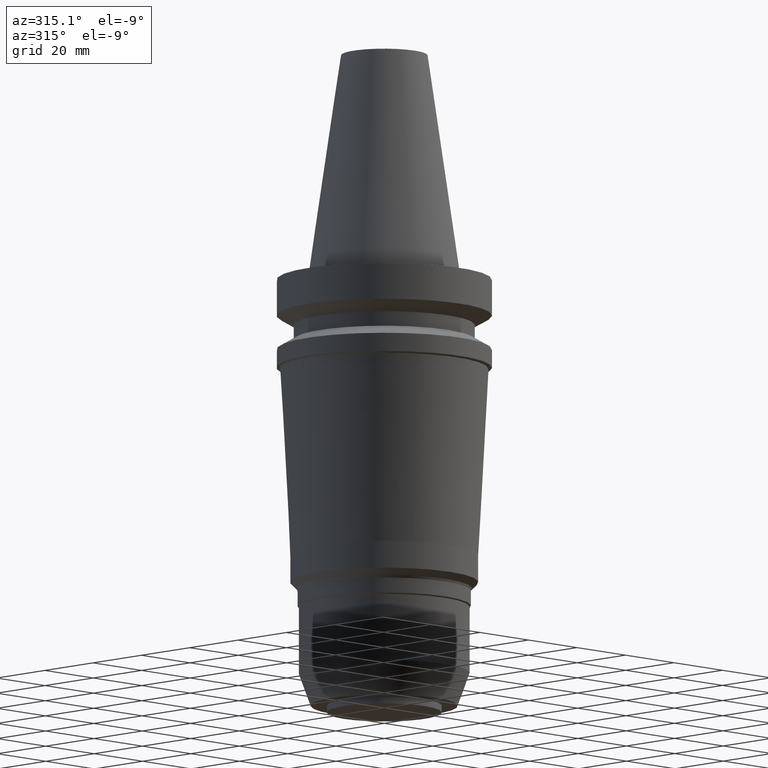
[diagram: clean part render]
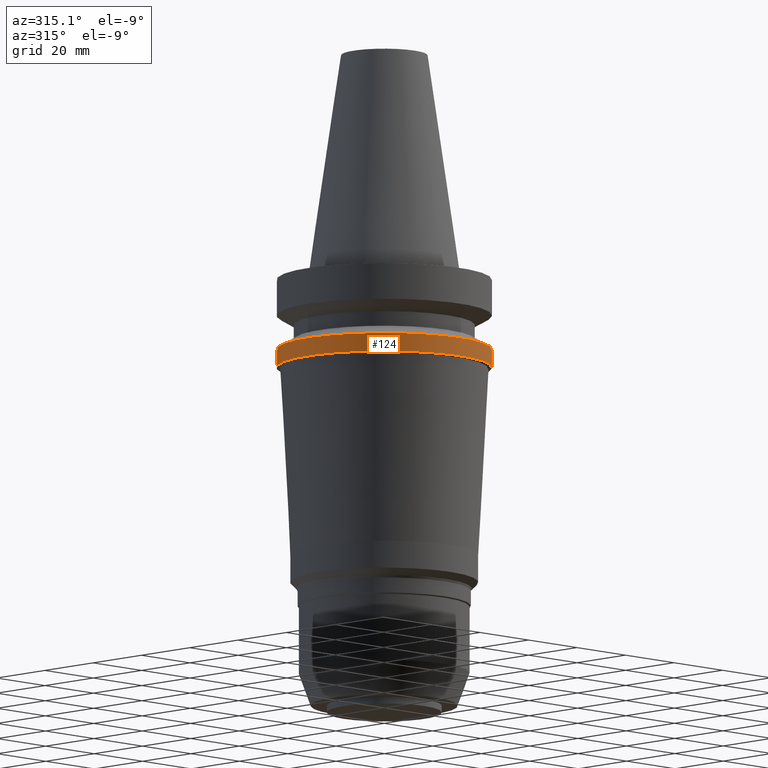
[diagram: same view with one face highlighted and labeled with its STEP entity id]
A machine part, auxiliary view. The second image highlights one B-rep face of the part: STEP entity #124.
In plain terms, the highlighted cylindrical surface (bore or boss wall) has radius 31.5 mm, axis along (0, -0, -1).
Its self-contained STEP definition (entity closure, byte-faithful):
#124=ADVANCED_FACE('Unnamed[1]',(#281,#282),#283,.T.);
#141=EDGE_CURVE('Unnamed[1]',#309,#309,#310,.T.);
#162=EDGE_CURVE('Unnamed[1]',#342,#342,#343,.T.);
#281=FACE_BOUND('',#483,.T.);
#282=FACE_BOUND('',#484,.T.);
#283=CYLINDRICAL_SURFACE('',#485,31.5000000000005);
#309=VERTEX_POINT('',#518);
#310=CIRCLE('',#519,31.5000000000003);
#342=VERTEX_POINT('',#559);
#343=CIRCLE('',#560,31.5000000000006);
#483=EDGE_LOOP('',(#686));
#484=EDGE_LOOP('',(#687));
#485=AXIS2_PLACEMENT_3D('',#688,#689,#690);
#518=CARTESIAN_POINT('',(1.65327317884891E-015,31.5000000000004,-26.9999999999998));
#519=AXIS2_PLACEMENT_3D('',#718,#719,#720);
#559=CARTESIAN_POINT('',(1.32473071268174E-015,31.5000000000007,-21.6344943473346));
#560=AXIS2_PLACEMENT_3D('',#756,#757,#758);
#686=ORIENTED_EDGE('',*,*,#141,.F.);
#687=ORIENTED_EDGE('',*,*,#162,.T.);
#688=CARTESIAN_POINT('',(1.48900194576533E-015,7.04265914233806E-014,-24.3172471736672));
#689=DIRECTION('',(6.12323399573677E-017,-7.43161200358337E-017,-1.0));
#690=DIRECTION('',(-2.76602804421509E-034,1.0,-7.43161200358337E-017));
#718=CARTESIAN_POINT('',(1.65327317884891E-015,7.02272196423123E-014,-26.9999999999998));
#719=DIRECTION('',(6.12323399573677E-017,-7.43161200358341E-017,-1.0));
#720=DIRECTION('',(-2.76602804421511E-034,1.0,-7.43161200358341E-017));
#756=CARTESIAN_POINT('',(1.32473071268174E-015,7.06259632044489E-014,-21.6344943473346));
#757=DIRECTION('',(6.12323399573677E-017,-7.43161200358333E-017,-1.0));
#758=DIRECTION('',(-2.76602804432896E-034,1.0,-7.43161200358333E-017));